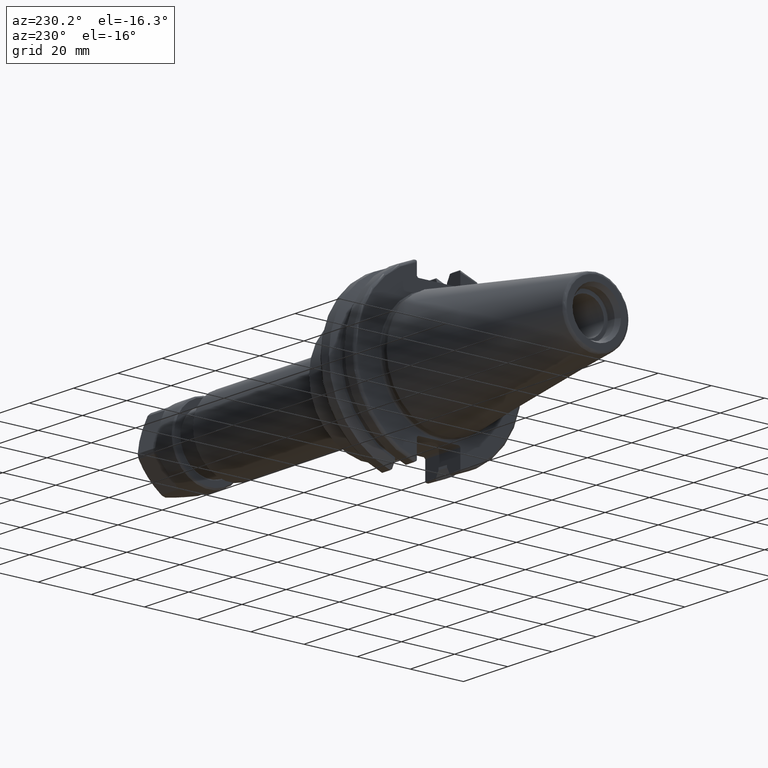
[diagram: clean part render]
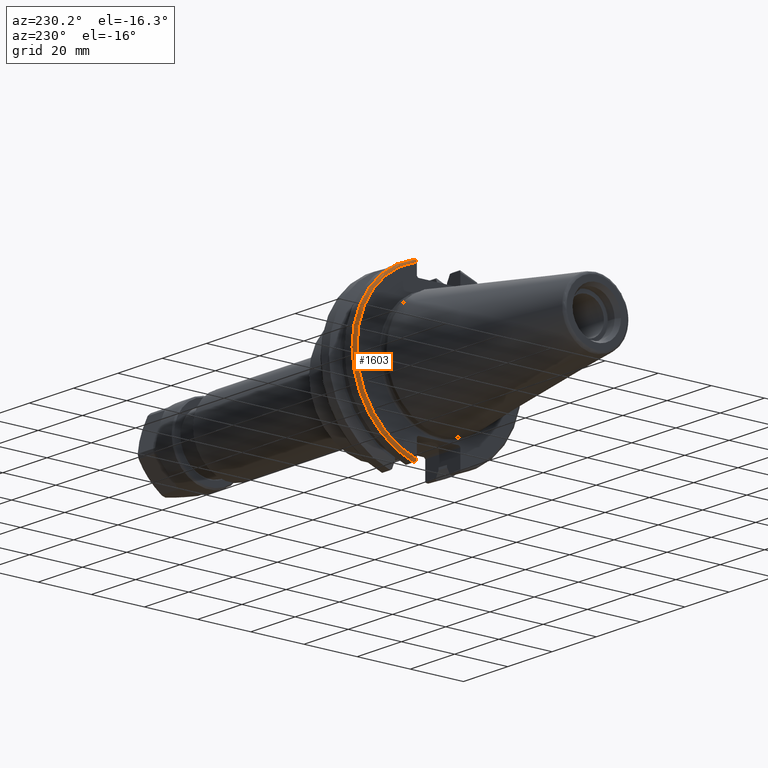
[diagram: same view with one face highlighted and labeled with its STEP entity id]
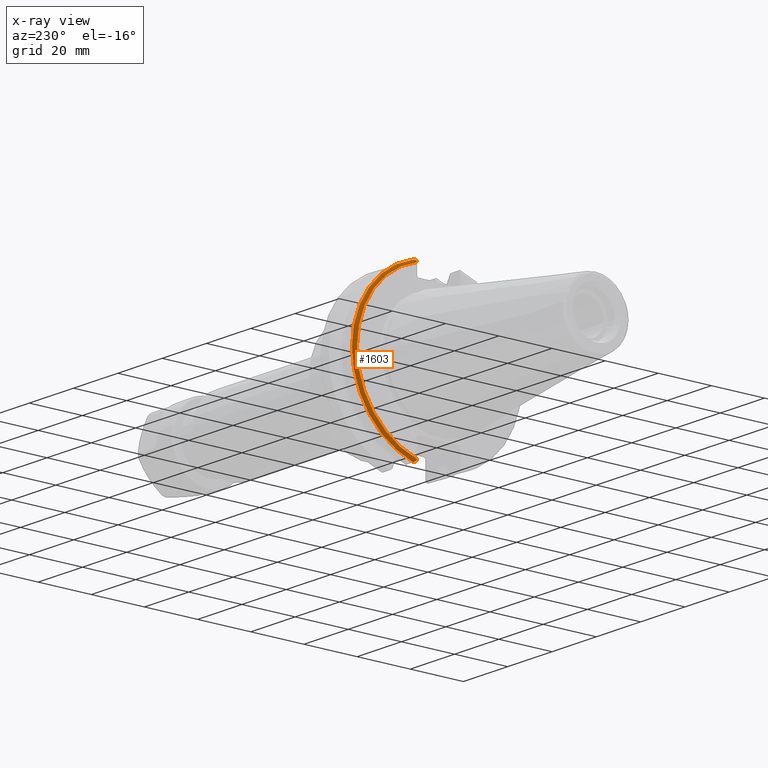
[diagram: x-ray of the same camera — body ghosted, the highlighted face saturated]
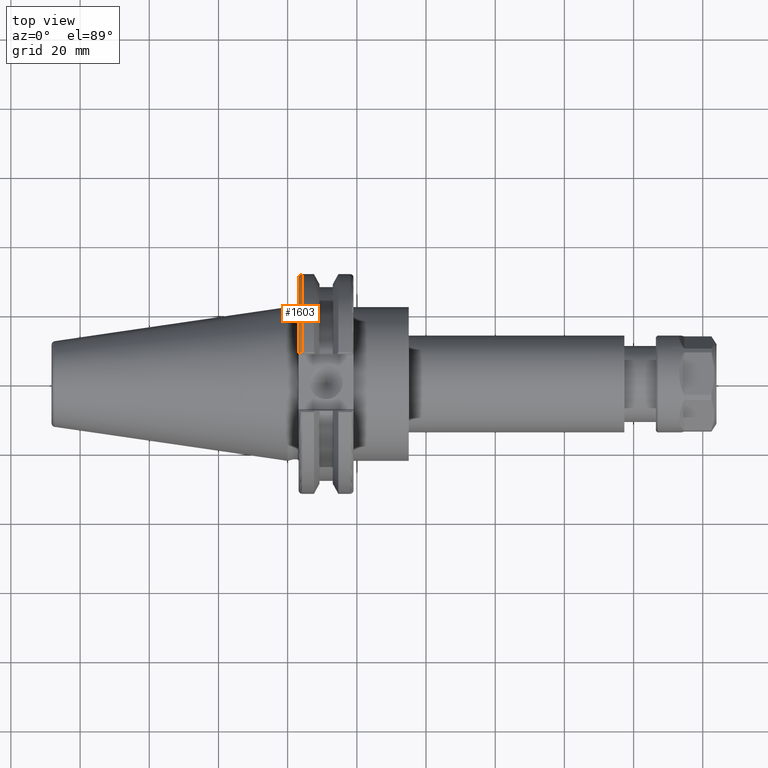
[diagram: same view with one face highlighted and labeled with its STEP entity id]
A machine part, auxiliary view. The second image highlights one B-rep face of the part: STEP entity #1603.
The next image is the same camera in x-ray: the body ghosted, the highlighted face saturated — about 0% of this face is hidden behind the body in this view.
A second angle (top view) of the same face is appended — the face is thin or edge-on in the first view.
In plain terms, the highlighted toroidal blend (fillet) surface has major radius 30.75 mm and minor (blend) radius 1 mm.
Its self-contained STEP definition (entity closure, byte-faithful):
#99=B_SPLINE_CURVE_WITH_KNOTS('',3,(#2549,#2550,#2551,#2552,#2553,#2554),
 .UNSPECIFIED.,.F.,.F.,(4,2,4),(0.0977210450333169,0.111963554372601,0.150804064902975),
 .UNSPECIFIED.);
#108=B_SPLINE_CURVE_WITH_KNOTS('',3,(#2713,#2714,#2715,#2716,#2717,#2718,
#2719,#2720),.UNSPECIFIED.,.F.,.F.,(4,2,2,4),(-0.104180282751876,-0.072978474246144,
-0.0343524753874979,0.),.UNSPECIFIED.);
#109=B_SPLINE_CURVE_WITH_KNOTS('',3,(#2723,#2724,#2725,#2726,#2727,#2728,
#2729,#2730),.UNSPECIFIED.,.F.,.F.,(4,2,2,4),(0.,0.0343524753874975,0.0729784742461445,
0.104180282751877),.UNSPECIFIED.);
#110=B_SPLINE_CURVE_WITH_KNOTS('',3,(#2731,#2732,#2733,#2734,#2735,#2736),
 .UNSPECIFIED.,.F.,.F.,(4,2,4),(0.452741154494498,0.491581665024872,0.505824174364157),
 .UNSPECIFIED.);
#115=TOROIDAL_SURFACE('',#1800,30.75,1.);
#223=FACE_OUTER_BOUND('',#324,.T.);
#324=EDGE_LOOP('',(#1235,#1236,#1237,#1238,#1239,#1240));
#639=CIRCLE('',#1780,30.75);
#647=CIRCLE('',#1801,31.75);
#722=VERTEX_POINT('',#2482);
#723=VERTEX_POINT('',#2484);
#738=VERTEX_POINT('',#2548);
#775=VERTEX_POINT('',#2711);
#776=VERTEX_POINT('',#2712);
#777=VERTEX_POINT('',#2721);
#885=EDGE_CURVE('',#723,#722,#639,.T.);
#904=EDGE_CURVE('',#738,#723,#99,.T.);
#952=EDGE_CURVE('',#775,#776,#108,.T.);
#953=EDGE_CURVE('',#776,#777,#647,.T.);
#954=EDGE_CURVE('',#777,#738,#109,.T.);
#955=EDGE_CURVE('',#722,#775,#110,.T.);
#1235=ORIENTED_EDGE('',*,*,#952,.T.);
#1236=ORIENTED_EDGE('',*,*,#953,.T.);
#1237=ORIENTED_EDGE('',*,*,#954,.T.);
#1238=ORIENTED_EDGE('',*,*,#904,.T.);
#1239=ORIENTED_EDGE('',*,*,#885,.T.);
#1240=ORIENTED_EDGE('',*,*,#955,.T.);
#1603=ADVANCED_FACE('',(#223),#115,.T.);
#1780=AXIS2_PLACEMENT_3D('',#2485,#2014,#2015);
#1800=AXIS2_PLACEMENT_3D('',#2710,#2091,#2092);
#1801=AXIS2_PLACEMENT_3D('',#2722,#2093,#2094);
#2014=DIRECTION('center_axis',(1.,0.,0.));
#2015=DIRECTION('ref_axis',(0.,1.,1.60812264967664E-16));
#2091=DIRECTION('center_axis',(1.,0.,0.));
#2092=DIRECTION('ref_axis',(0.,0.,-1.));
#2093=DIRECTION('center_axis',(-1.,0.,0.));
#2094=DIRECTION('ref_axis',(0.,1.,1.60812264967664E-16));
#2482=CARTESIAN_POINT('',(3.175,8.19,29.6392712461019));
#2484=CARTESIAN_POINT('',(3.175,8.18999999999999,-29.6392712461019));
#2485=CARTESIAN_POINT('Origin',(3.175,0.,0.));
#2548=CARTESIAN_POINT('',(3.31912772509028,8.19,-30.1755016258903));
#2549=CARTESIAN_POINT('Ctrl Pts',(3.31912772509028,8.19,-30.1755016258903));
#2550=CARTESIAN_POINT('Ctrl Pts',(3.29318362718666,8.19,-30.131014531546));
#2551=CARTESIAN_POINT('Ctrl Pts',(3.27103565282437,8.19,-30.0852355256475));
#2552=CARTESIAN_POINT('Ctrl Pts',(3.20451443291695,8.19,-29.9212724384851));
#2553=CARTESIAN_POINT('Ctrl Pts',(3.175,8.19,-29.7687396145364));
#2554=CARTESIAN_POINT('Ctrl Pts',(3.175,8.19,-29.6392712461019));
#2710=CARTESIAN_POINT('Origin',(4.175,0.,0.));
#2711=CARTESIAN_POINT('',(3.31912772509028,8.19,30.1755016258903));
#2712=CARTESIAN_POINT('',(4.175,8.67204822802685,30.5427254764662));
#2713=CARTESIAN_POINT('Ctrl Pts',(3.31912772509028,8.19,30.1755016258903));
#2714=CARTESIAN_POINT('Ctrl Pts',(3.36755369570114,8.2703682833078,30.2367261024977));
#2715=CARTESIAN_POINT('Ctrl Pts',(3.43232973376814,8.34909446036477,30.2966996242308));
#2716=CARTESIAN_POINT('Ctrl Pts',(3.58532758094931,8.48862804755884,30.4029961692546));
#2717=CARTESIAN_POINT('Ctrl Pts',(3.70655857052286,8.56482138642532,30.4610401774263));
#2718=CARTESIAN_POINT('Ctrl Pts',(3.92668295662254,8.6471881193939,30.5237870709558));
#2719=CARTESIAN_POINT('Ctrl Pts',(4.06049174870834,8.67204822802686,30.5427254764662));
#2720=CARTESIAN_POINT('Ctrl Pts',(4.175,8.67204822802686,30.5427254764662));
#2721=CARTESIAN_POINT('',(4.175,8.67204822802685,-30.5427254764662));
#2722=CARTESIAN_POINT('Origin',(4.175,0.,0.));
#2723=CARTESIAN_POINT('Ctrl Pts',(4.175,8.67204822802685,-30.5427254764662));
#2724=CARTESIAN_POINT('Ctrl Pts',(4.06049174870834,8.67204822802685,-30.5427254764662));
#2725=CARTESIAN_POINT('Ctrl Pts',(3.92668295662254,8.6471881193939,-30.5237870709558));
#2726=CARTESIAN_POINT('Ctrl Pts',(3.70655857052286,8.56482138642533,-30.4610401774263));
#2727=CARTESIAN_POINT('Ctrl Pts',(3.58532758094931,8.48862804755884,-30.4029961692546));
#2728=CARTESIAN_POINT('Ctrl Pts',(3.43232973376814,8.34909446036477,-30.2966996242308));
#2729=CARTESIAN_POINT('Ctrl Pts',(3.36755369570113,8.2703682833078,-30.2367261024977));
#2730=CARTESIAN_POINT('Ctrl Pts',(3.31912772509028,8.18999999999999,-30.1755016258903));
#2731=CARTESIAN_POINT('Ctrl Pts',(3.175,8.19,29.6392712461018));
#2732=CARTESIAN_POINT('Ctrl Pts',(3.175,8.19,29.7687396145364));
#2733=CARTESIAN_POINT('Ctrl Pts',(3.20451443291695,8.19,29.9212724384851));
#2734=CARTESIAN_POINT('Ctrl Pts',(3.27103565282437,8.19,30.0852355256475));
#2735=CARTESIAN_POINT('Ctrl Pts',(3.29318362718666,8.19,30.131014531546));
#2736=CARTESIAN_POINT('Ctrl Pts',(3.31912772509028,8.19,30.1755016258903));